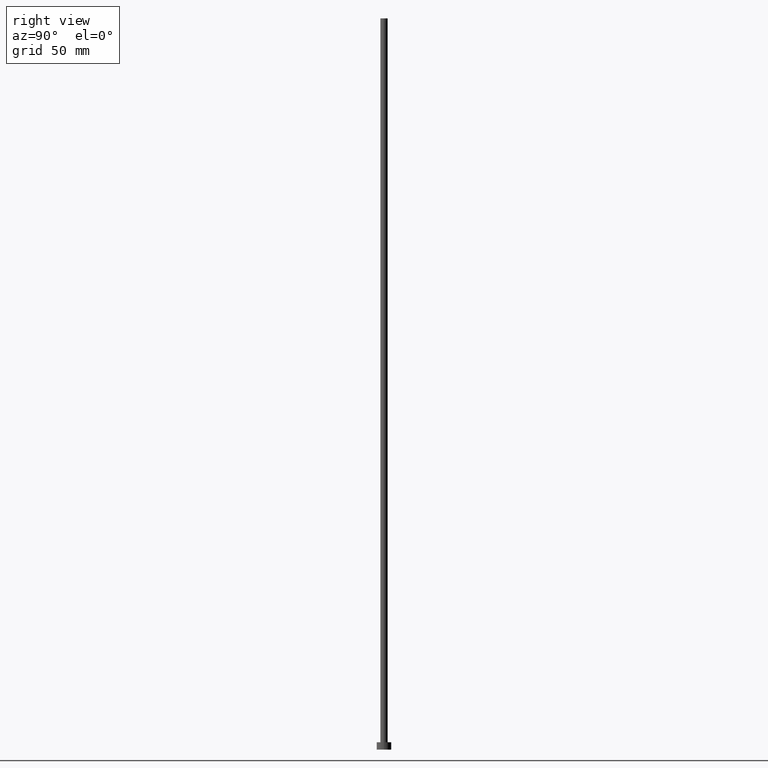
[diagram: clean part render]
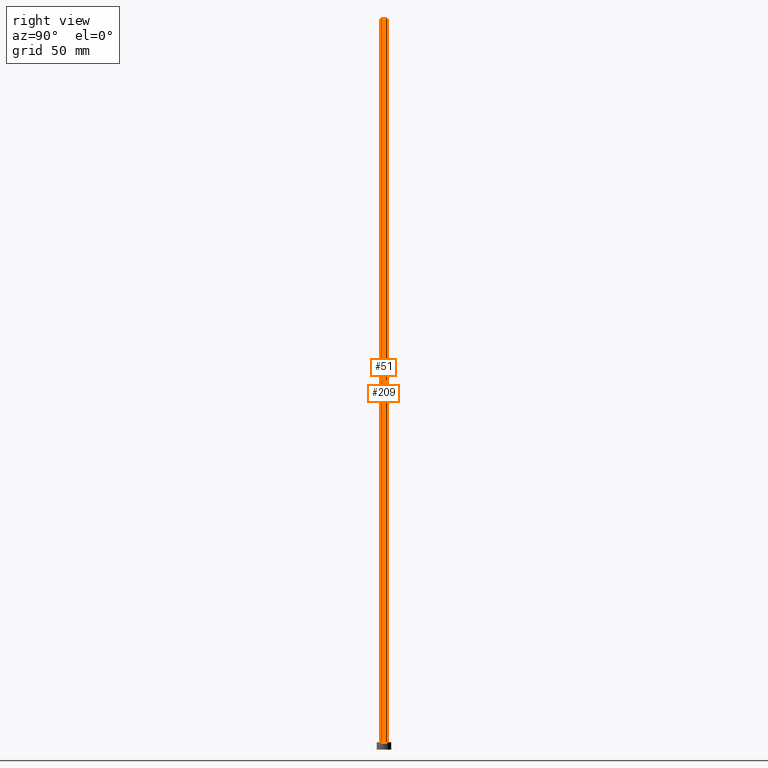
[diagram: same view with one multi-face feature highlighted, each face labeled with its STEP entity id]
A machine part, right view. The highlighted faces form ONE feature: a constant-radius fillet chain: 2 tangent blend faces with common blend radius 2.5 mm. The faces share edges in the B-rep.
Their STEP definitions:
[1] entity #209 (Cylinder):
#8 = CARTESIAN_POINT ( 'NONE',  ( 2.500000000000000000, 3.061616997868383141E-16, 500.0000000000000000 ) ) ;
#13 = DIRECTION ( 'NONE',  ( -0.000000000000000000, -0.000000000000000000, -1.000000000000000000 ) ) ;
#23 = EDGE_CURVE ( 'NONE', #78, #43, #250, .T. ) ;
#33 = DIRECTION ( 'NONE',  ( 0.000000000000000000, 0.000000000000000000, 1.000000000000000000 ) ) ;
#39 = ORIENTED_EDGE ( 'NONE', *, *, #59, .F. ) ;
#40 = AXIS2_PLACEMENT_3D ( 'NONE', #138, #13, #220 ) ;
#43 = VERTEX_POINT ( 'NONE', #216 ) ;
#53 = CARTESIAN_POINT ( 'NONE',  ( 0.000000000000000000, 0.000000000000000000, 5.000000000000000000 ) ) ;
#56 = CARTESIAN_POINT ( 'NONE',  ( 2.500000000000000000, 3.061616997868383141E-16, 5.000000000000000000 ) ) ;
#59 = EDGE_CURVE ( 'NONE', #222, #78, #61, .T. ) ;
#61 = CIRCLE ( 'NONE', #179, 2.500000000000000000 ) ;
#67 = EDGE_CURVE ( 'NONE', #222, #242, #247, .T. ) ;
#71 = CARTESIAN_POINT ( 'NONE',  ( 2.500000000000000000, 3.061616997868383141E-16, 500.0000000000000000 ) ) ;
#75 = VECTOR ( 'NONE', #192, 1000.000000000000000 ) ;
#78 = VERTEX_POINT ( 'NONE', #90 ) ;
#90 = CARTESIAN_POINT ( 'NONE',  ( -2.500000000000000000, 0.000000000000000000, 500.0000000000000000 ) ) ;
#97 = ORIENTED_EDGE ( 'NONE', *, *, #172, .T. ) ;
#115 = DIRECTION ( 'NONE',  ( 1.000000000000000000, 0.000000000000000000, 0.000000000000000000 ) ) ;
#134 = CARTESIAN_POINT ( 'NONE',  ( -2.500000000000000000, 0.000000000000000000, 500.0000000000000000 ) ) ;
#135 = ORIENTED_EDGE ( 'NONE', *, *, #67, .T. ) ;
#138 = CARTESIAN_POINT ( 'NONE',  ( 0.000000000000000000, 0.000000000000000000, 500.0000000000000000 ) ) ;
#140 = CIRCLE ( 'NONE', #180, 2.500000000000000000 ) ;
#156 = CARTESIAN_POINT ( 'NONE',  ( 0.000000000000000000, 0.000000000000000000, 500.0000000000000000 ) ) ;
#167 = DIRECTION ( 'NONE',  ( -0.000000000000000000, -0.000000000000000000, -1.000000000000000000 ) ) ;
#172 = EDGE_CURVE ( 'NONE', #242, #43, #140, .T. ) ;
#179 = AXIS2_PLACEMENT_3D ( 'NONE', #156, #33, #115 ) ;
#180 = AXIS2_PLACEMENT_3D ( 'NONE', #53, #252, #253 ) ;
#181 = ORIENTED_EDGE ( 'NONE', *, *, #23, .F. ) ;
#192 = DIRECTION ( 'NONE',  ( -0.000000000000000000, -0.000000000000000000, -1.000000000000000000 ) ) ;
#201 = FACE_OUTER_BOUND ( 'NONE', #202, .T. ) ;
#202 = EDGE_LOOP ( 'NONE', ( #39, #135, #97, #181 ) ) ;
#209 = ADVANCED_FACE ( 'NONE', ( #201 ), #236, .T. ) ;
#216 = CARTESIAN_POINT ( 'NONE',  ( -2.500000000000000000, 0.000000000000000000, 5.000000000000000000 ) ) ;
#220 = DIRECTION ( 'NONE',  ( -1.000000000000000000, 0.000000000000000000, 0.000000000000000000 ) ) ;
#222 = VERTEX_POINT ( 'NONE', #71 ) ;
#236 = CYLINDRICAL_SURFACE ( 'NONE', #40, 2.500000000000000000 ) ;
#242 = VERTEX_POINT ( 'NONE', #56 ) ;
#247 = LINE ( 'NONE', #8, #251 ) ;
#250 = LINE ( 'NONE', #134, #75 ) ;
#251 = VECTOR ( 'NONE', #167, 1000.000000000000000 ) ;
#252 = DIRECTION ( 'NONE',  ( 0.000000000000000000, 0.000000000000000000, 1.000000000000000000 ) ) ;
#253 = DIRECTION ( 'NONE',  ( 1.000000000000000000, 0.000000000000000000, 0.000000000000000000 ) ) ;
[2] entity #51 (Cylinder):
#2 = EDGE_CURVE ( 'NONE', #78, #222, #195, .T. ) ;
#8 = CARTESIAN_POINT ( 'NONE',  ( 2.500000000000000000, 3.061616997868383141E-16, 500.0000000000000000 ) ) ;
#23 = EDGE_CURVE ( 'NONE', #78, #43, #250, .T. ) ;
#27 = CARTESIAN_POINT ( 'NONE',  ( 0.000000000000000000, 0.000000000000000000, 500.0000000000000000 ) ) ;
#32 = ORIENTED_EDGE ( 'NONE', *, *, #2, .F. ) ;
#36 = AXIS2_PLACEMENT_3D ( 'NONE', #136, #66, #84 ) ;
#43 = VERTEX_POINT ( 'NONE', #216 ) ;
#51 = ADVANCED_FACE ( 'NONE', ( #248 ), #110, .T. ) ;
#56 = CARTESIAN_POINT ( 'NONE',  ( 2.500000000000000000, 3.061616997868383141E-16, 5.000000000000000000 ) ) ;
#66 = DIRECTION ( 'NONE',  ( -0.000000000000000000, -0.000000000000000000, -1.000000000000000000 ) ) ;
#67 = EDGE_CURVE ( 'NONE', #222, #242, #247, .T. ) ;
#71 = CARTESIAN_POINT ( 'NONE',  ( 2.500000000000000000, 3.061616997868383141E-16, 500.0000000000000000 ) ) ;
#72 = EDGE_CURVE ( 'NONE', #43, #242, #219, .T. ) ;
#75 = VECTOR ( 'NONE', #192, 1000.000000000000000 ) ;
#78 = VERTEX_POINT ( 'NONE', #90 ) ;
#84 = DIRECTION ( 'NONE',  ( -1.000000000000000000, 0.000000000000000000, 0.000000000000000000 ) ) ;
#90 = CARTESIAN_POINT ( 'NONE',  ( -2.500000000000000000, 0.000000000000000000, 500.0000000000000000 ) ) ;
#99 = AXIS2_PLACEMENT_3D ( 'NONE', #27, #104, #184 ) ;
#104 = DIRECTION ( 'NONE',  ( 0.000000000000000000, 0.000000000000000000, 1.000000000000000000 ) ) ;
#110 = CYLINDRICAL_SURFACE ( 'NONE', #36, 2.500000000000000000 ) ;
#126 = ORIENTED_EDGE ( 'NONE', *, *, #67, .F. ) ;
#134 = CARTESIAN_POINT ( 'NONE',  ( -2.500000000000000000, 0.000000000000000000, 500.0000000000000000 ) ) ;
#136 = CARTESIAN_POINT ( 'NONE',  ( 0.000000000000000000, 0.000000000000000000, 500.0000000000000000 ) ) ;
#139 = AXIS2_PLACEMENT_3D ( 'NONE', #233, #169, #231 ) ;
#167 = DIRECTION ( 'NONE',  ( -0.000000000000000000, -0.000000000000000000, -1.000000000000000000 ) ) ;
#169 = DIRECTION ( 'NONE',  ( 0.000000000000000000, 0.000000000000000000, 1.000000000000000000 ) ) ;
#184 = DIRECTION ( 'NONE',  ( 1.000000000000000000, 0.000000000000000000, 0.000000000000000000 ) ) ;
#192 = DIRECTION ( 'NONE',  ( -0.000000000000000000, -0.000000000000000000, -1.000000000000000000 ) ) ;
#195 = CIRCLE ( 'NONE', #99, 2.500000000000000000 ) ;
#204 = ORIENTED_EDGE ( 'NONE', *, *, #72, .T. ) ;
#216 = CARTESIAN_POINT ( 'NONE',  ( -2.500000000000000000, 0.000000000000000000, 5.000000000000000000 ) ) ;
#219 = CIRCLE ( 'NONE', #139, 2.500000000000000000 ) ;
#222 = VERTEX_POINT ( 'NONE', #71 ) ;
#231 = DIRECTION ( 'NONE',  ( 1.000000000000000000, 0.000000000000000000, 0.000000000000000000 ) ) ;
#233 = CARTESIAN_POINT ( 'NONE',  ( 0.000000000000000000, 0.000000000000000000, 5.000000000000000000 ) ) ;
#241 = EDGE_LOOP ( 'NONE', ( #126, #32, #249, #204 ) ) ;
#242 = VERTEX_POINT ( 'NONE', #56 ) ;
#247 = LINE ( 'NONE', #8, #251 ) ;
#248 = FACE_OUTER_BOUND ( 'NONE', #241, .T. ) ;
#249 = ORIENTED_EDGE ( 'NONE', *, *, #23, .T. ) ;
#250 = LINE ( 'NONE', #134, #75 ) ;
#251 = VECTOR ( 'NONE', #167, 1000.000000000000000 ) ;